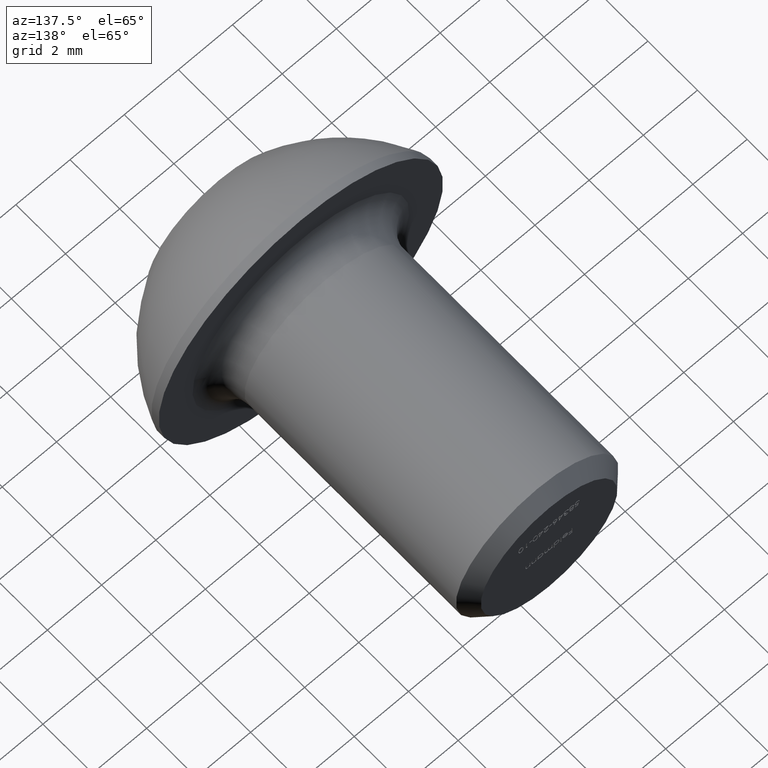
[diagram: clean part render]
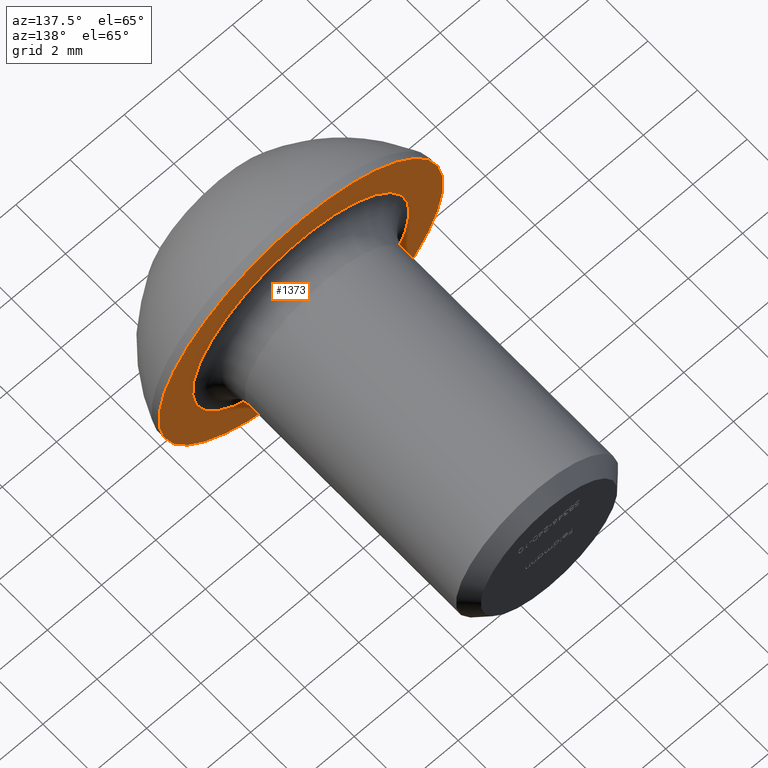
[diagram: same view with one face highlighted and labeled with its STEP entity id]
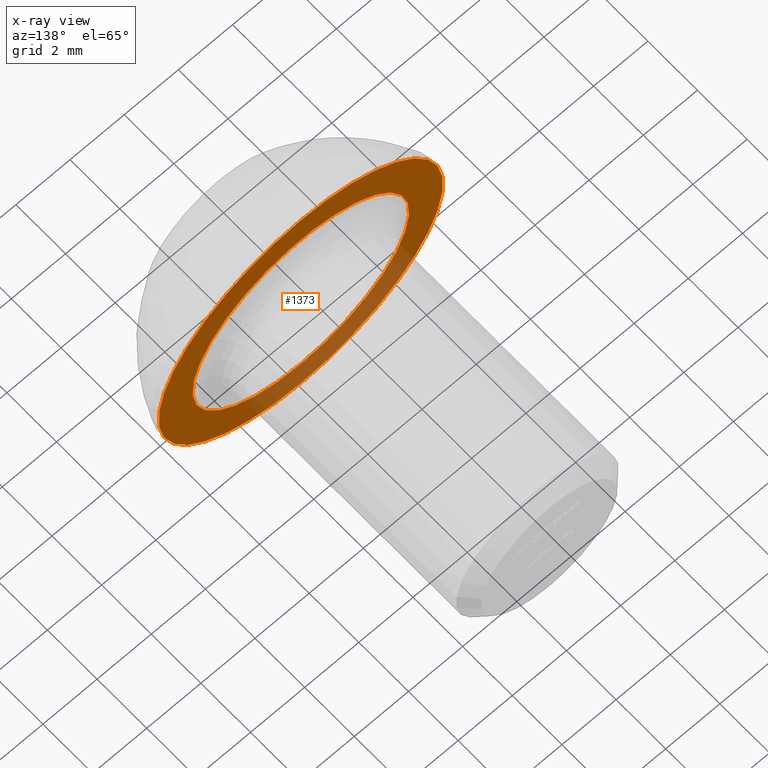
[diagram: x-ray of the same camera — body ghosted, the highlighted face saturated]
A machine part, auxiliary view. The second image highlights one B-rep face of the part: STEP entity #1373.
The next image is the same camera in x-ray: the body ghosted, the highlighted face saturated — about 23% of this face is hidden behind the body in this view.
In plain terms, the highlighted planar face has unit normal (0, -1, -0).
Its self-contained STEP definition (entity closure, byte-faithful):
#135 = CARTESIAN_POINT ( 'NONE',  ( 0.0000000000000000000, 3.299999999999999800, 0.0000000000000000000 ) ) ;
#688 = AXIS2_PLACEMENT_3D ( 'NONE', #135, #3709, #4903 ) ;
#756 = DIRECTION ( 'NONE',  ( -0.0000000000000000000, -1.000000000000000000, -0.0000000000000000000 ) ) ;
#1373 = ADVANCED_FACE ( 'NONE', ( #5050, #11445 ), #6794, .F. ) ;
#2513 = CIRCLE ( 'NONE', #688, 5.249999999999999100 ) ;
#3146 = EDGE_CURVE ( 'NONE', #6937, #6937, #5783, .T. ) ;
#3328 = DIRECTION ( 'NONE',  ( 0.0000000000000000000, 0.0000000000000000000, -1.000000000000000000 ) ) ;
#3709 = DIRECTION ( 'NONE',  ( -0.0000000000000000000, -1.000000000000000000, -0.0000000000000000000 ) ) ;
#4448 = DIRECTION ( 'NONE',  ( 0.0000000000000000000, -1.000000000000000000, -0.0000000000000000000 ) ) ;
#4552 = DIRECTION ( 'NONE',  ( 0.0000000000000000000, 0.0000000000000000000, -1.000000000000000000 ) ) ;
#4903 = DIRECTION ( 'NONE',  ( 0.0000000000000000000, 0.0000000000000000000, -1.000000000000000000 ) ) ;
#5050 = FACE_BOUND ( 'NONE', #9939, .T. ) ;
#5778 = CARTESIAN_POINT ( 'NONE',  ( 0.0000000000000000000, 3.299999999999999800, 0.0000000000000000000 ) ) ;
#5783 = CIRCLE ( 'NONE', #14098, 3.999999999999998200 ) ;
#6220 = EDGE_LOOP ( 'NONE', ( #14329 ) ) ;
#6627 = AXIS2_PLACEMENT_3D ( 'NONE', #9197, #4448, #4552 ) ;
#6794 = PLANE ( 'NONE',  #6627 ) ;
#6937 = VERTEX_POINT ( 'NONE', #8309 ) ;
#8309 = CARTESIAN_POINT ( 'NONE',  ( 0.0000000000000000000, 3.299999999999999800, -3.999999999999998200 ) ) ;
#9197 = CARTESIAN_POINT ( 'NONE',  ( 2.999999999999999100, 3.299999999999999800, 0.0000000000000000000 ) ) ;
#9939 = EDGE_LOOP ( 'NONE', ( #13433 ) ) ;
#10878 = VERTEX_POINT ( 'NONE', #14494 ) ;
#11445 = FACE_OUTER_BOUND ( 'NONE', #6220, .T. ) ;
#12358 = EDGE_CURVE ( 'NONE', #10878, #10878, #2513, .T. ) ;
#13433 = ORIENTED_EDGE ( 'NONE', *, *, #3146, .T. ) ;
#14098 = AXIS2_PLACEMENT_3D ( 'NONE', #5778, #756, #3328 ) ;
#14329 = ORIENTED_EDGE ( 'NONE', *, *, #12358, .F. ) ;
#14494 = CARTESIAN_POINT ( 'NONE',  ( 0.0000000000000000000, 3.299999999999999800, -5.249999999999999100 ) ) ;